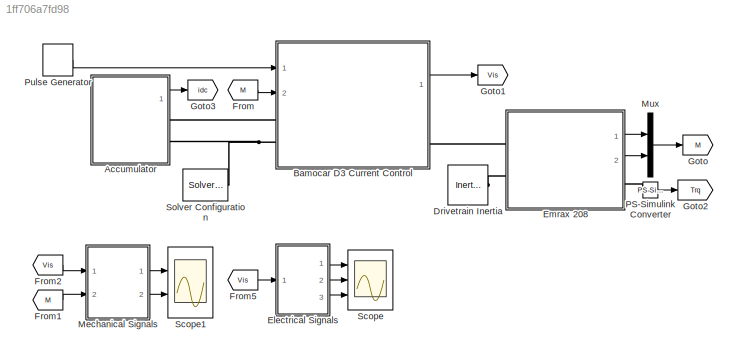
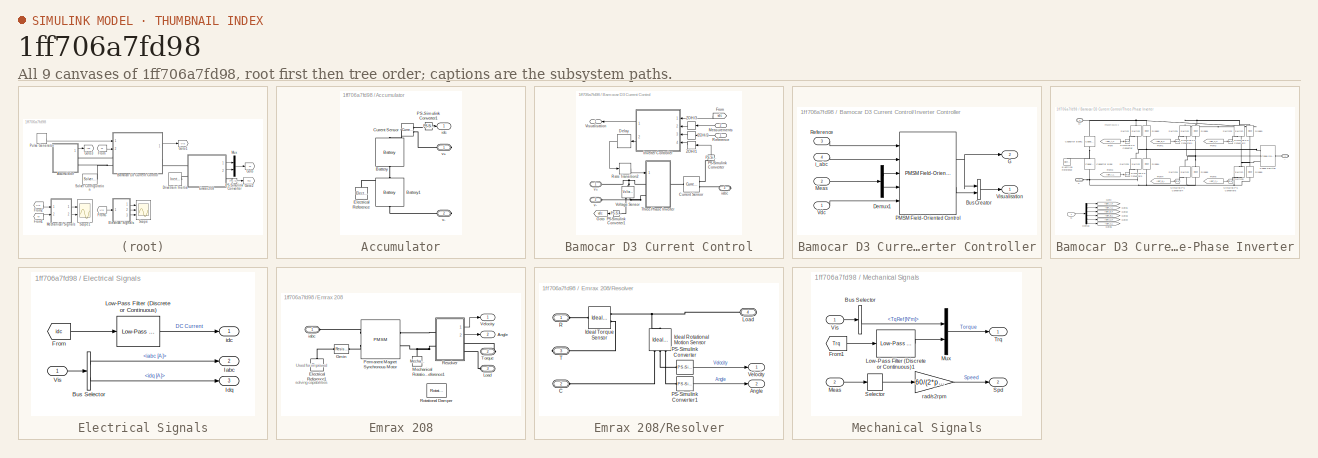
[diagram: thumbnail index - all 9 canvases of the model, root first then tree order]
MODEL slx_1ff706a7fd98
KIND model
CONFIG AbsTol = auto
CONFIG EnableMultiTasking = off
CONFIG FixedStep = auto
CONFIG InitFcn = DriveTrainInitialise;
CONFIG MaxStep = auto
CONFIG MinStep = auto
CONFIG RelTol = 1e-3
CONFIG SampleTimeConstraint = Unconstrained
CONFIG Solver = VariableStepAuto
CONFIG SolverName = VariableStepAuto
CONFIG StartTime = 0.0
CONFIG StopTime = 5
BLOCK [SubSystem] Accumulator
  AncestorBlock = AccumulatorLIB/Accumulator (Simple)
  Ports = [0, 1, 0, 0, 0, 0, 2]
  RequestExecContextInheritance = off
BLOCK [Reference] Accumulator/Battery  REF=ee_lib/Sources/Battery
  Ports = [0, 0, 0, 0, 0, 1, 1]
  SourceBlock = ee_lib/Sources/Battery
  SourceProductBaseCode = PS
  SourceProductName = Simscape Electrical
  SourceType = Battery
BLOCK [Reference] Accumulator/Battery1  REF=ee_lib/Sources/Battery
  Ports = [0, 0, 0, 0, 0, 1, 1]
  SourceBlock = ee_lib/Sources/Battery
  SourceProductBaseCode = PS
  SourceProductName = Simscape Electrical
  SourceType = Battery
BLOCK [Reference] Accumulator/Current Sensor  REF=fl_lib/Electrical/Electrical Sensors/Current Sensor
  Ports = [0, 0, 0, 0, 0, 1, 2]
  SourceBlock = fl_lib/Electrical/Electrical Sensors/Current Sensor
  SourceProductBaseCode = SS
  SourceProductName = Simscape
  SourceType = Current Sensor
BLOCK [Reference] Accumulator/Electrical Reference  REF=fl_lib/Electrical/Electrical Elements/Electrical Reference
  Ports = [0, 0, 0, 0, 0, 1]
  SourceBlock = fl_lib/Electrical/Electrical Elements/Electrical Reference
  SourceProductName = Foundation Library
  SourceType = Electrical Reference
BLOCK [Reference] Accumulator/PS-Simulink Converter1  REF=nesl_utility/PS-Simulink
Converter
  Ports = [0, 1, 0, 0, 0, 1]
  SourceBlock = nesl_utility/PS-Simulink\nConverter
  SourceProductBaseCode = SS
  SourceProductName = Simscape
  SourceType = PS-Simulink\nConverter
BLOCK [Outport] Accumulator/idc
  IconDisplay = Port number
BLOCK [PMIOPort] Accumulator/v+
  Side = Right
BLOCK [PMIOPort] Accumulator/v-
  Port = 2
  Side = Right
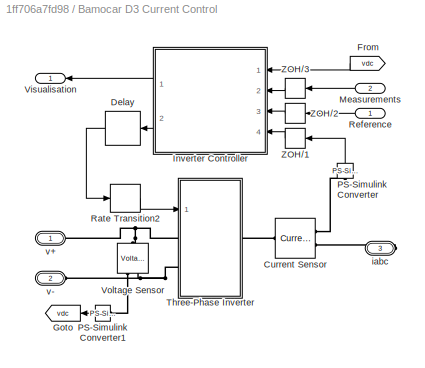
BLOCK [SubSystem] Bamocar D3 Current Control
  AncestorBlock = InverterLIB/Bamocar D3 Current Control (Simple IGBTs)
  Ports = [2, 1, 0, 0, 0, 2, 1]
  RequestExecContextInheritance = off
BLOCK [Reference] Bamocar D3 Current Control/Current Sensor  REF=ee_lib/Sensors &
Transducers/Current Sensor
(Three-Phase)
  Ports = [0, 0, 0, 0, 0, 1, 2]
  SourceBlock = ee_lib/Sensors &\nTransducers/Current Sensor\n(Three-Phase)
  SourceProductBaseCode = PS
  SourceProductName = Simscape Electrical
  SourceType = Current Sensor\n(Three-Phase)
BLOCK [Delay] Bamocar D3 Current Control/Delay
  DelayLength = 1
  InputPortMap = u0
  Ports = [1, 1]
BLOCK [From] Bamocar D3 Current Control/From
  GotoTag = vdc
BLOCK [Goto] Bamocar D3 Current Control/Goto
  GotoTag = vdc
BLOCK [SubSystem] Bamocar D3 Current Control/Inverter Controller
  Ports = [4, 2]
  RequestExecContextInheritance = off
BLOCK [BusCreator] Bamocar D3 Current Control/Inverter Controller/Bus Creator
  DisplayOption = bar
  InheritFromInputs = on
  Inputs = 2
  Ports = [2, 1]
BLOCK [Demux] Bamocar D3 Current Control/Inverter Controller/Demux1
  DisplayOption = bar
  Outputs = 2
  Ports = [1, 2]
BLOCK [Outport] Bamocar D3 Current Control/Inverter Controller/G
  IconDisplay = Port number
  Port = 2
BLOCK [Inport] Bamocar D3 Current Control/Inverter Controller/Meas
  IconDisplay = Port number
  Port = 2
BLOCK [Reference] Bamocar D3 Current Control/Inverter Controller/PMSM Field-Oriented Control  REF=eePmsmFieldOrientedControl/PMSM Field-Oriented
Control
  Ports = [5, 2]
  SourceBlock = eePmsmFieldOrientedControl/PMSM Field-Oriented\nControl
  SourceProductBaseCode = PS
  SourceProductName = Simscape Electrical
  SourceType = PMSM Field-Oriented Control
BLOCK [Inport] Bamocar D3 Current Control/Inverter Controller/Reference
  IconDisplay = Port number
  Port = 3
BLOCK [Inport] Bamocar D3 Current Control/Inverter Controller/Vdc
  IconDisplay = Port number
BLOCK [Outport] Bamocar D3 Current Control/Inverter Controller/Visualisation
  IconDisplay = Port number
BLOCK [Inport] Bamocar D3 Current Control/Inverter Controller/i_abc
  IconDisplay = Port number
  Port = 4
BLOCK [Inport] Bamocar D3 Current Control/Measurements
  IconDisplay = Port number
  Port = 2
BLOCK [Reference] Bamocar D3 Current Control/PS-Simulink Converter  REF=nesl_utility/PS-Simulink
Converter
  Ports = [0, 1, 0, 0, 0, 1]
  SourceBlock = nesl_utility/PS-Simulink\nConverter
  SourceProductBaseCode = SS
  SourceProductName = Simscape
  SourceType = PS-Simulink\nConverter
BLOCK [Reference] Bamocar D3 Current Control/PS-Simulink Converter1  REF=nesl_utility/PS-Simulink
Converter
  Ports = [0, 1, 0, 0, 0, 1]
  SourceBlock = nesl_utility/PS-Simulink\nConverter
  SourceProductBaseCode = SS
  SourceProductName = Simscape
  SourceType = PS-Simulink\nConverter
BLOCK [RateTransition] Bamocar D3 Current Control/Rate Transition2
  OutPortSampleTime = Ts
BLOCK [Inport] Bamocar D3 Current Control/Reference
  IconDisplay = Port number
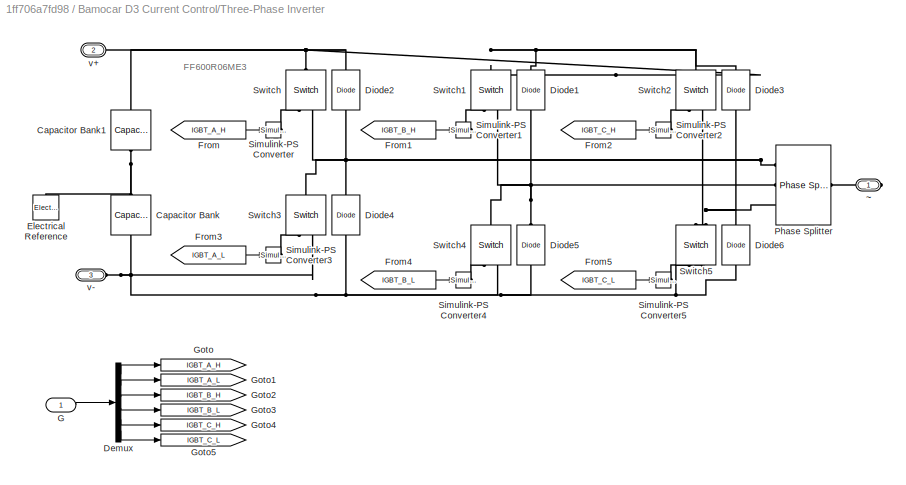
BLOCK [SubSystem] Bamocar D3 Current Control/Three-Phase Inverter
  Ports = [1, 0, 0, 0, 0, 2, 1]
  RequestExecContextInheritance = off
BLOCK [Reference] Bamocar D3 Current Control/Three-Phase Inverter/Capacitor Bank  REF=fl_lib/Electrical/Electrical Elements/Capacitor
  Ports = [0, 0, 0, 0, 0, 1, 1]
  SourceBlock = fl_lib/Electrical/Electrical Elements/Capacitor
  SourceProductBaseCode = SS
  SourceProductName = Simscape
  SourceType = Capacitor
BLOCK [Reference] Bamocar D3 Current Control/Three-Phase Inverter/Capacitor Bank1  REF=fl_lib/Electrical/Electrical Elements/Capacitor
  Ports = [0, 0, 0, 0, 0, 1, 1]
  SourceBlock = fl_lib/Electrical/Electrical Elements/Capacitor
  SourceProductBaseCode = SS
  SourceProductName = Simscape
  SourceType = Capacitor
BLOCK [Demux] Bamocar D3 Current Control/Three-Phase Inverter/Demux
  DisplayOption = bar
  Outputs = 6
  Ports = [1, 6]
BLOCK [Reference] Bamocar D3 Current Control/Three-Phase Inverter/Diode1  REF=fl_lib/Electrical/Electrical Elements/Diode
  Ports = [0, 0, 0, 0, 0, 1, 1]
  SourceBlock = fl_lib/Electrical/Electrical Elements/Diode
  SourceProductBaseCode = SS
  SourceProductName = Simscape
  SourceType = Diode
BLOCK [Reference] Bamocar D3 Current Control/Three-Phase Inverter/Diode2  REF=fl_lib/Electrical/Electrical Elements/Diode
  Ports = [0, 0, 0, 0, 0, 1, 1]
  SourceBlock = fl_lib/Electrical/Electrical Elements/Diode
  SourceProductBaseCode = SS
  SourceProductName = Simscape
  SourceType = Diode
BLOCK [Reference] Bamocar D3 Current Control/Three-Phase Inverter/Diode3  REF=fl_lib/Electrical/Electrical Elements/Diode
  Ports = [0, 0, 0, 0, 0, 1, 1]
  SourceBlock = fl_lib/Electrical/Electrical Elements/Diode
  SourceProductBaseCode = SS
  SourceProductName = Simscape
  SourceType = Diode
BLOCK [Reference] Bamocar D3 Current Control/Three-Phase Inverter/Diode4  REF=fl_lib/Electrical/Electrical Elements/Diode
  Ports = [0, 0, 0, 0, 0, 1, 1]
  SourceBlock = fl_lib/Electrical/Electrical Elements/Diode
  SourceProductBaseCode = SS
  SourceProductName = Simscape
  SourceType = Diode
BLOCK [Reference] Bamocar D3 Current Control/Three-Phase Inverter/Diode5  REF=fl_lib/Electrical/Electrical Elements/Diode
  Ports = [0, 0, 0, 0, 0, 1, 1]
  SourceBlock = fl_lib/Electrical/Electrical Elements/Diode
  SourceProductBaseCode = SS
  SourceProductName = Simscape
  SourceType = Diode
BLOCK [Reference] Bamocar D3 Current Control/Three-Phase Inverter/Diode6  REF=fl_lib/Electrical/Electrical Elements/Diode
  Ports = [0, 0, 0, 0, 0, 1, 1]
  SourceBlock = fl_lib/Electrical/Electrical Elements/Diode
  SourceProductBaseCode = SS
  SourceProductName = Simscape
  SourceType = Diode
BLOCK [Reference] Bamocar D3 Current Control/Three-Phase Inverter/Electrical Reference  REF=fl_lib/Electrical/Electrical Elements/Electrical Reference
  Ports = [0, 0, 0, 0, 0, 1]
  SourceBlock = fl_lib/Electrical/Electrical Elements/Electrical Reference
  SourceProductName = Foundation Library
  SourceType = Electrical Reference
BLOCK [From] Bamocar D3 Current Control/Three-Phase Inverter/From
  GotoTag = IGBT_A_H
BLOCK [From] Bamocar D3 Current Control/Three-Phase Inverter/From1
  GotoTag = IGBT_B_H
BLOCK [From] Bamocar D3 Current Control/Three-Phase Inverter/From2
  GotoTag = IGBT_C_H
BLOCK [From] Bamocar D3 Current Control/Three-Phase Inverter/From3
  GotoTag = IGBT_A_L
BLOCK [From] Bamocar D3 Current Control/Three-Phase Inverter/From4
  GotoTag = IGBT_B_L
BLOCK [From] Bamocar D3 Current Control/Three-Phase Inverter/From5
  GotoTag = IGBT_C_L
BLOCK [Inport] Bamocar D3 Current Control/Three-Phase Inverter/G
  IconDisplay = Port number
BLOCK [Goto] Bamocar D3 Current Control/Three-Phase Inverter/Goto
  GotoTag = IGBT_A_H
BLOCK [Goto] Bamocar D3 Current Control/Three-Phase Inverter/Goto1
  GotoTag = IGBT_A_L
BLOCK [Goto] Bamocar D3 Current Control/Three-Phase Inverter/Goto2
  GotoTag = IGBT_B_H
BLOCK [Goto] Bamocar D3 Current Control/Three-Phase Inverter/Goto3
  GotoTag = IGBT_B_L
BLOCK [Goto] Bamocar D3 Current Control/Three-Phase Inverter/Goto4
  GotoTag = IGBT_C_H
BLOCK [Goto] Bamocar D3 Current Control/Three-Phase Inverter/Goto5
  GotoTag = IGBT_C_L
BLOCK [Reference] Bamocar D3 Current Control/Three-Phase Inverter/Phase Splitter  REF=ee_lib/Connectors &
References/Phase Splitter
  Ports = [0, 0, 0, 0, 0, 1, 3]
  SourceBlock = ee_lib/Connectors &\nReferences/Phase Splitter
  SourceProductBaseCode = PS
  SourceProductName = Simscape Electrical
  SourceType = Phase Splitter
BLOCK [Reference] Bamocar D3 Current Control/Three-Phase Inverter/Simulink-PS Converter  REF=nesl_utility/Simulink-PS
Converter
  Ports = [1, 0, 0, 0, 0, 0, 1]
  SourceBlock = nesl_utility/Simulink-PS\nConverter
  SourceProductBaseCode = SS
  SourceProductName = Simscape
  SourceType = Simulink-PS\nConverter
BLOCK [Reference] Bamocar D3 Current Control/Three-Phase Inverter/Simulink-PS Converter1  REF=nesl_utility/Simulink-PS
Converter
  Ports = [1, 0, 0, 0, 0, 0, 1]
  SourceBlock = nesl_utility/Simulink-PS\nConverter
  SourceProductBaseCode = SS
  SourceProductName = Simscape
  SourceType = Simulink-PS\nConverter
BLOCK [Reference] Bamocar D3 Current Control/Three-Phase Inverter/Simulink-PS Converter2  REF=nesl_utility/Simulink-PS
Converter
  Ports = [1, 0, 0, 0, 0, 0, 1]
  SourceBlock = nesl_utility/Simulink-PS\nConverter
  SourceProductBaseCode = SS
  SourceProductName = Simscape
  SourceType = Simulink-PS\nConverter
BLOCK [Reference] Bamocar D3 Current Control/Three-Phase Inverter/Simulink-PS Converter3  REF=nesl_utility/Simulink-PS
Converter
  Ports = [1, 0, 0, 0, 0, 0, 1]
  SourceBlock = nesl_utility/Simulink-PS\nConverter
  SourceProductBaseCode = SS
  SourceProductName = Simscape
  SourceType = Simulink-PS\nConverter
BLOCK [Reference] Bamocar D3 Current Control/Three-Phase Inverter/Simulink-PS Converter4  REF=nesl_utility/Simulink-PS
Converter
  Ports = [1, 0, 0, 0, 0, 0, 1]
  SourceBlock = nesl_utility/Simulink-PS\nConverter
  SourceProductBaseCode = SS
  SourceProductName = Simscape
  SourceType = Simulink-PS\nConverter
BLOCK [Reference] Bamocar D3 Current Control/Three-Phase Inverter/Simulink-PS Converter5  REF=nesl_utility/Simulink-PS
Converter
  Ports = [1, 0, 0, 0, 0, 0, 1]
  SourceBlock = nesl_utility/Simulink-PS\nConverter
  SourceProductBaseCode = SS
  SourceProductName = Simscape
  SourceType = Simulink-PS\nConverter
BLOCK [Reference] Bamocar D3 Current Control/Three-Phase Inverter/Switch  REF=fl_lib/Electrical/Electrical Elements/Switch
  Ports = [0, 0, 0, 0, 0, 1, 2]
  SourceBlock = fl_lib/Electrical/Electrical Elements/Switch
  SourceProductBaseCode = SS
  SourceProductName = Simscape
  SourceType = Switch
BLOCK [Reference] Bamocar D3 Current Control/Three-Phase Inverter/Switch1  REF=fl_lib/Electrical/Electrical Elements/Switch
  Ports = [0, 0, 0, 0, 0, 1, 2]
  SourceBlock = fl_lib/Electrical/Electrical Elements/Switch
  SourceProductBaseCode = SS
  SourceProductName = Simscape
  SourceType = Switch
BLOCK [Reference] Bamocar D3 Current Control/Three-Phase Inverter/Switch2  REF=fl_lib/Electrical/Electrical Elements/Switch
  Ports = [0, 0, 0, 0, 0, 1, 2]
  SourceBlock = fl_lib/Electrical/Electrical Elements/Switch
  SourceProductBaseCode = SS
  SourceProductName = Simscape
  SourceType = Switch
BLOCK [Reference] Bamocar D3 Current Control/Three-Phase Inverter/Switch3  REF=fl_lib/Electrical/Electrical Elements/Switch
  Ports = [0, 0, 0, 0, 0, 1, 2]
  SourceBlock = fl_lib/Electrical/Electrical Elements/Switch
  SourceProductBaseCode = SS
  SourceProductName = Simscape
  SourceType = Switch
BLOCK [Reference] Bamocar D3 Current Control/Three-Phase Inverter/Switch4  REF=fl_lib/Electrical/Electrical Elements/Switch
  Ports = [0, 0, 0, 0, 0, 1, 2]
  SourceBlock = fl_lib/Electrical/Electrical Elements/Switch
  SourceProductBaseCode = SS
  SourceProductName = Simscape
  SourceType = Switch
BLOCK [Reference] Bamocar D3 Current Control/Three-Phase Inverter/Switch5  REF=fl_lib/Electrical/Electrical Elements/Switch
  Ports = [0, 0, 0, 0, 0, 1, 2]
  SourceBlock = fl_lib/Electrical/Electrical Elements/Switch
  SourceProductBaseCode = SS
  SourceProductName = Simscape
  SourceType = Switch
BLOCK [PMIOPort] Bamocar D3 Current Control/Three-Phase Inverter/v+
  Port = 2
  Side = Left
  Tag = PMCPort
BLOCK [PMIOPort] Bamocar D3 Current Control/Three-Phase Inverter/v-
  Port = 3
  Side = Left
  Tag = PMCPort
BLOCK [PMIOPort] Bamocar D3 Current Control/Three-Phase Inverter/~
  Side = Right
  Tag = PMCPort
BLOCK [Outport] Bamocar D3 Current Control/Visualisation
  IconDisplay = Port number
BLOCK [Reference] Bamocar D3 Current Control/Voltage Sensor  REF=fl_lib/Electrical/Electrical Sensors/Voltage Sensor
  Ports = [0, 0, 0, 0, 0, 1, 2]
  SourceBlock = fl_lib/Electrical/Electrical Sensors/Voltage Sensor
  SourceProductBaseCode = SS
  SourceProductName = Simscape
  SourceType = Voltage Sensor
BLOCK [ZeroOrderHold] Bamocar D3 Current Control/ZOH//1
  SampleTime = Tsc
BLOCK [ZeroOrderHold] Bamocar D3 Current Control/ZOH//2
  SampleTime = Tsc
BLOCK [ZeroOrderHold] Bamocar D3 Current Control/ZOH//3
  SampleTime = Tsc
BLOCK [PMIOPort] Bamocar D3 Current Control/iabc
  Port = 3
  Side = Right
BLOCK [PMIOPort] Bamocar D3 Current Control/v+
  Side = Left
BLOCK [PMIOPort] Bamocar D3 Current Control/v-
  Port = 2
  Side = Left
BLOCK [Reference] Drivetrain Inertia  REF=fl_lib/Mechanical/Rotational Elements/Inertia
  Ports = [0, 0, 0, 0, 0, 1]
  SourceBlock = fl_lib/Mechanical/Rotational Elements/Inertia
  SourceProductBaseCode = SS
  SourceProductName = Simscape
  SourceType = Inertia
BLOCK [SubSystem] Electrical Signals
  Ports = [1, 3]
  RequestExecContextInheritance = off
BLOCK [BusSelector] Electrical Signals/Bus Selector
  OutputAsBus = off
  OutputSignals = signal2.iabc [A],signal2.idq [A]
  Ports = [1, 2]
BLOCK [From] Electrical Signals/From
  GotoTag = idc
  TagVisibility = global
BLOCK [Outport] Electrical Signals/Iabc
  IconDisplay = Port number
  Port = 2
BLOCK [Outport] Electrical Signals/Idq
  IconDisplay = Port number
  Port = 3
BLOCK [Reference] Electrical Signals/Low-Pass Filter (Discrete or Continuous)  REF=eeGeneralControl/Low-Pass Filter
(Discrete or Continuous)
  Ports = [1, 1]
  SourceBlock = eeGeneralControl/Low-Pass Filter\n(Discrete or Continuous)
  SourceProductBaseCode = PS
  SourceProductName = Simscape Electrical
  SourceType = Low-Pass Filter (Discrete or Continuous)
BLOCK [Inport] Electrical Signals/Vis
  IconDisplay = Port number
BLOCK [Outport] Electrical Signals/idc
  IconDisplay = Port number
BLOCK [SubSystem] Emrax 208
  AncestorBlock = MotorLIB/Emrax 208
  Ports = [0, 2, 0, 0, 0, 2, 1]
  RequestExecContextInheritance = off
BLOCK [Outport] Emrax 208/Angle
  IconDisplay = Port number
  Port = 2
BLOCK [Reference] Emrax 208/Electrical Reference1  REF=fl_lib/Electrical/Electrical Elements/Electrical Reference
  Ports = [0, 0, 0, 0, 0, 1]
  SourceBlock = fl_lib/Electrical/Electrical Elements/Electrical Reference
  SourceProductBaseCode = SS
  SourceProductName = Simscape
  SourceType = Electrical Reference
BLOCK [Reference] Emrax 208/Gmin  REF=fl_lib/Electrical/Electrical Elements/Resistor
  Ports = [0, 0, 0, 0, 0, 1, 1]
  SourceBlock = fl_lib/Electrical/Electrical Elements/Resistor
  SourceProductBaseCode = SS
  SourceProductName = Simscape
  SourceType = Resistor
BLOCK [PMIOPort] Emrax 208/Load
  Port = 3
  Side = Left
BLOCK [Reference] Emrax 208/Mechanical Rotational Reference1  REF=fl_lib/Mechanical/Rotational Elements/Mechanical
Rotational Reference
  Ports = [0, 0, 0, 0, 0, 1]
  SourceBlock = fl_lib/Mechanical/Rotational Elements/Mechanical\nRotational Reference
  SourceProductBaseCode = SS
  SourceProductName = Simscape
  SourceType = Mechanical\nRotational Reference
BLOCK [Reference] Emrax 208/Permanent Magnet Synchronous Motor  REF=ee_lib/Electromechanical/Permanent Magnet/PMSM
  Ports = [0, 0, 0, 0, 0, 2, 2]
  SourceBlock = ee_lib/Electromechanical/Permanent Magnet/PMSM
  SourceProductBaseCode = PS
  SourceProductName = Simscape Electrical
  SourceType = PMSM
BLOCK [SubSystem] Emrax 208/Resolver
  Ports = [0, 2, 0, 0, 0, 2, 2]
  RequestExecContextInheritance = off
BLOCK [Outport] Emrax 208/Resolver/Angle
  IconDisplay = Port number
  Port = 2
BLOCK [PMIOPort] Emrax 208/Resolver/C
  Port = 2
  Side = Left
BLOCK [Reference] Emrax 208/Resolver/Ideal Rotational Motion Sensor  REF=fl_lib/Mechanical/Mechanical Sensors/Ideal Rotational
Motion Sensor
  Ports = [0, 0, 0, 0, 0, 1, 3]
  SourceBlock = fl_lib/Mechanical/Mechanical Sensors/Ideal Rotational\nMotion Sensor
  SourceProductName = Foundation Library
  SourceType = Ideal Rotational\nMotion Sensor
BLOCK [Reference] Emrax 208/Resolver/Ideal Torque Sensor  REF=fl_lib/Mechanical/Mechanical Sensors/Ideal Torque Sensor
  Ports = [0, 0, 0, 0, 0, 1, 2]
  SourceBlock = fl_lib/Mechanical/Mechanical Sensors/Ideal Torque Sensor
  SourceProductName = Foundation Library
  SourceType = Ideal Torque Sensor
BLOCK [PMIOPort] Emrax 208/Resolver/Load
  Port = 4
  Side = Right
BLOCK [Reference] Emrax 208/Resolver/PS-Simulink Converter  REF=nesl_utility/PS-Simulink
Converter
  Ports = [0, 1, 0, 0, 0, 1]
  SourceBlock = nesl_utility/PS-Simulink\nConverter
  SourceProductBaseCode = SS
  SourceProductName = Simscape
  SourceType = PS-Simulink\nConverter
BLOCK [Reference] Emrax 208/Resolver/PS-Simulink Converter1  REF=nesl_utility/PS-Simulink
Converter
  Ports = [0, 1, 0, 0, 0, 1]
  SourceBlock = nesl_utility/PS-Simulink\nConverter
  SourceProductBaseCode = SS
  SourceProductName = Simscape
  SourceType = PS-Simulink\nConverter
BLOCK [PMIOPort] Emrax 208/Resolver/R
  Side = Left
BLOCK [PMIOPort] Emrax 208/Resolver/T
  Port = 3
  Side = Right
BLOCK [Outport] Emrax 208/Resolver/Velocity
  IconDisplay = Port number
BLOCK [Reference] Emrax 208/Rotational Damper  REF=fl_lib/Mechanical/Rotational Elements/Rotational Damper
  Commented = on
  Ports = [0, 0, 0, 0, 0, 1, 1]
  SourceBlock = fl_lib/Mechanical/Rotational Elements/Rotational Damper
  SourceProductBaseCode = SS
  SourceProductName = Simscape
  SourceType = Rotational Damper
BLOCK [PMIOPort] Emrax 208/Torque
  Port = 2
  Side = Right
BLOCK [Outport] Emrax 208/Velocity
  IconDisplay = Port number
BLOCK [PMIOPort] Emrax 208/iabc
  Side = Left
BLOCK [From] From
  GotoTag = M
BLOCK [From] From1
  GotoTag = M
BLOCK [From] From2
  GotoTag = Vis
BLOCK [From] From5
  GotoTag = Vis
BLOCK [Goto] Goto
  GotoTag = M
BLOCK [Goto] Goto1
  GotoTag = Vis
BLOCK [Goto] Goto2
  GotoTag = Trq
  TagVisibility = global
BLOCK [Goto] Goto3
  GotoTag = idc
  TagVisibility = global
BLOCK [SubSystem] Mechanical Signals
  Ports = [2, 2]
  RequestExecContextInheritance = off
BLOCK [BusSelector] Mechanical Signals/Bus Selector
  OutputAsBus = off
  OutputSignals = signal2.TqRef [N*m]
  Ports = [1, 1]
BLOCK [From] Mechanical Signals/From1
  GotoTag = Trq
  TagVisibility = global
BLOCK [Reference] Mechanical Signals/Low-Pass Filter (Discrete or Continuous)1  REF=eeGeneralControl/Low-Pass Filter
(Discrete or Continuous)
  Ports = [1, 1]
  SourceBlock = eeGeneralControl/Low-Pass Filter\n(Discrete or Continuous)
  SourceProductBaseCode = PS
  SourceProductName = Simscape Electrical
  SourceType = Low-Pass Filter (Discrete or Continuous)
BLOCK [Inport] Mechanical Signals/Meas 
  IconDisplay = Port number
  Port = 2
BLOCK [Mux] Mechanical Signals/Mux
  DisplayOption = bar
  Inputs = 2
  Ports = [2, 1]
BLOCK [Selector] Mechanical Signals/Selector
  IndexOptions = Index vector (dialog)
  Indices = [1]
  InputPortWidth = 2
  OutputSizes = 1
  Ports = [1, 1]
BLOCK [Outport] Mechanical Signals/Spd
  IconDisplay = Port number
  Port = 2
BLOCK [Outport] Mechanical Signals/Trq
  IconDisplay = Port number
BLOCK [Inport] Mechanical Signals/Vis
  IconDisplay = Port number
BLOCK [Gain] Mechanical Signals/rad//s2rpm
  Gain = 60/(2*pi)
  OutDataTypeStr = Inherit: Inherit via internal rule
  ParamDataTypeStr = Inherit: Inherit via internal rule
  SaturateOnIntegerOverflow = off
BLOCK [Mux] Mux
  DisplayOption = bar
  Inputs = 2
  Ports = [2, 1]
BLOCK [Reference] PS-Simulink Converter  REF=nesl_utility/PS-Simulink
Converter
  Ports = [0, 1, 0, 0, 0, 1]
  SourceBlock = nesl_utility/PS-Simulink\nConverter
  SourceProductBaseCode = SS
  SourceProductName = Simscape
  SourceType = PS-Simulink\nConverter
BLOCK [DiscretePulseGenerator] Pulse Generator
  Amplitude = 5
  Period = 0.6
  PhaseDelay = 0.05
  Ports = [0, 1]
  PulseType = Time based
  PulseWidth = 50
BLOCK [Scope] Scope
  Floating = off
  NumInputPorts = 3
  Ports = [3]
  ScopeSpecificationString = Simulink.scopes.TimeScopeBlockCfg('CurrentConfiguration', extmgr.ConfigurationSet(extmgr.Configuration('Core','General UI',true),extmgr.Configuration('Core','Source UI',true),extmgr.Configuration('Sources','WiredSimulink',true,'DataLoggingVariableName','ScopeData1'),extmgr.Configuration('Visuals','Time Domain',true,'SerializedDisplays',{struct('MinYLimReal','-15.33111','MaxYLimReal','137.97996','Y...<+2969ch>
BLOCK [Scope] Scope1
  Floating = off
  NumInputPorts = 2
  Ports = [2]
  ScopeSpecificationString = Simulink.scopes.TimeScopeBlockCfg('CurrentConfiguration', extmgr.ConfigurationSet(extmgr.Configuration('Core','General UI',true,'FigureColor',[0 0 0]),extmgr.Configuration('Core','Source UI',true),extmgr.Configuration('Sources','WiredSimulink',true,'DataLoggingVariableName','ScopeData2'),extmgr.Configuration('Visuals','Time Domain',true,'SerializedDisplays',{struct('MinYLimReal','-0.75016','MaxYLi...<+2269ch>
BLOCK [Reference] Solver Configuration  REF=nesl_utility/Solver
Configuration
  Ports = [0, 0, 0, 0, 0, 0, 1]
  SourceBlock = nesl_utility/Solver\nConfiguration
  SourceProductBaseCode = SS
  SourceProductName = Simscape
  SourceType = Solver\nConfiguration
ANNOTATION Bamocar D3 Current Control/Three-Phase Inverter: FF600R06ME3
ANNOTATION Emrax 208: Used for improved solving capabilities
LINE Accumulator:1 -> Goto3:1
LINE Bamocar D3 Current Control:1 -> Goto1:1
LINE Electrical Signals/Bus Selector:1 -> Electrical Signals/Iabc:1
LINE Electrical Signals/Bus Selector:2 -> Electrical Signals/Idq:1
LINE Electrical Signals/From:1 -> Electrical Signals/Low-Pass Filter (Discrete or Continuous):1
LINE Electrical Signals/Low-Pass Filter (Discrete or Continuous):1 -> Electrical Signals/idc:1
LINE Electrical Signals/Vis:1 -> Electrical Signals/Bus Selector:1
LINE Electrical Signals:1 -> Scope:1
LINE Electrical Signals:2 -> Scope:2
LINE Electrical Signals:3 -> Scope:3
LINE Emrax 208:1 -> Mux:1
LINE Emrax 208:2 -> Mux:2
LINE From1:1 -> Mechanical Signals:2
LINE From2:1 -> Mechanical Signals:1
LINE From5:1 -> Electrical Signals:1
LINE From:1 -> Bamocar D3 Current Control:2
LINE Mechanical Signals/Bus Selector:1 -> Mechanical Signals/Mux:1
LINE Mechanical Signals/From1:1 -> Mechanical Signals/Low-Pass Filter (Discrete or Continuous)1:1
LINE Mechanical Signals/Low-Pass Filter (Discrete or Continuous)1:1 -> Mechanical Signals/Mux:2
LINE Mechanical Signals/Meas :1 -> Mechanical Signals/Selector:1
LINE Mechanical Signals/Mux:1 -> Mechanical Signals/Trq:1
LINE Mechanical Signals/Selector:1 -> Mechanical Signals/rad//s2rpm:1
LINE Mechanical Signals/Vis:1 -> Mechanical Signals/Bus Selector:1
LINE Mechanical Signals/rad//s2rpm:1 -> Mechanical Signals/Spd:1
LINE Mechanical Signals:1 -> Scope1:1
LINE Mechanical Signals:2 -> Scope1:2
LINE Mux:1 -> Goto:1
LINE PS-Simulink Converter:1 -> Goto2:1
LINE Pulse Generator:1 -> Bamocar D3 Current Control:1
PLINE Accumulator:RConn1 -- Bamocar D3 Current Control:LConn1
PNET net1: Accumulator:RConn2 -- Bamocar D3 Current Control:LConn2 -- Solver Configuration:RConn1
PLINE Bamocar D3 Current Control:RConn1 -- Emrax 208:LConn1
PLINE Drivetrain Inertia:LConn1 -- Emrax 208:LConn2
PLINE Emrax 208:RConn1 -- PS-Simulink Converter:LConn1
note: PNET lines group multi-terminal physical nets as a canonical sorted terminal list (undirected conserving connections); 2-terminal nets keep the pairwise PLINE form
